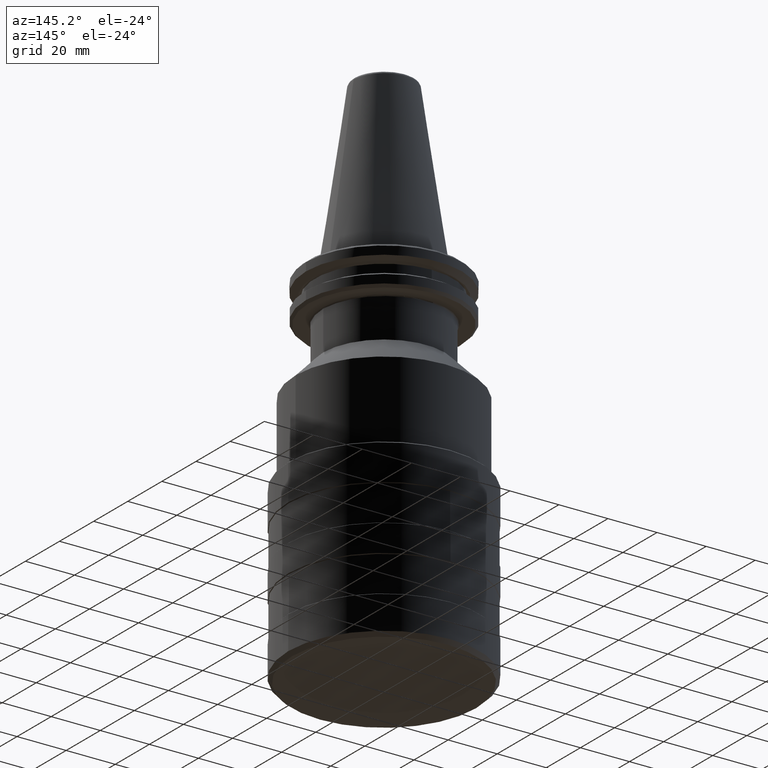
[diagram: clean part render]
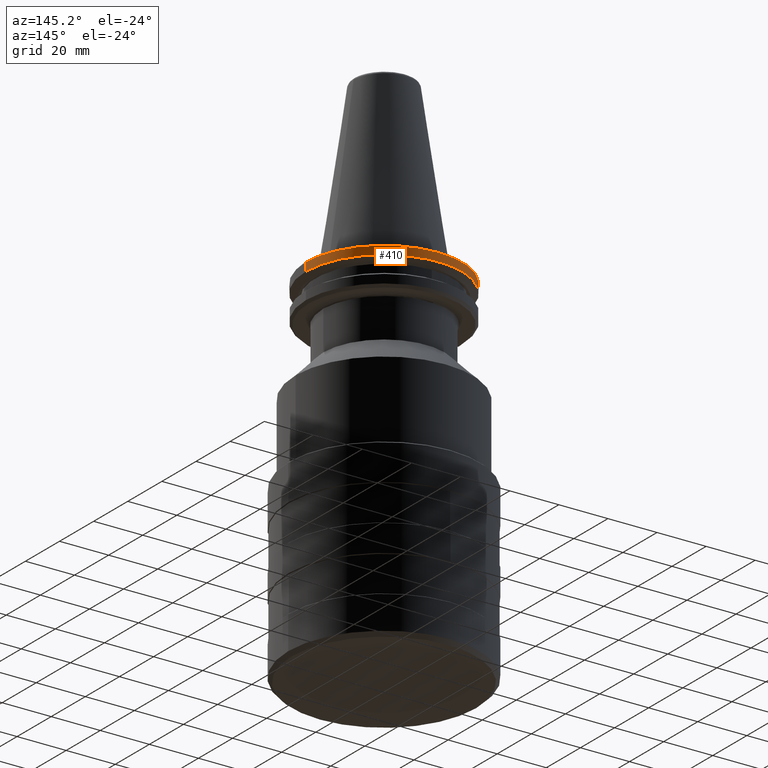
[diagram: same view with one face highlighted and labeled with its STEP entity id]
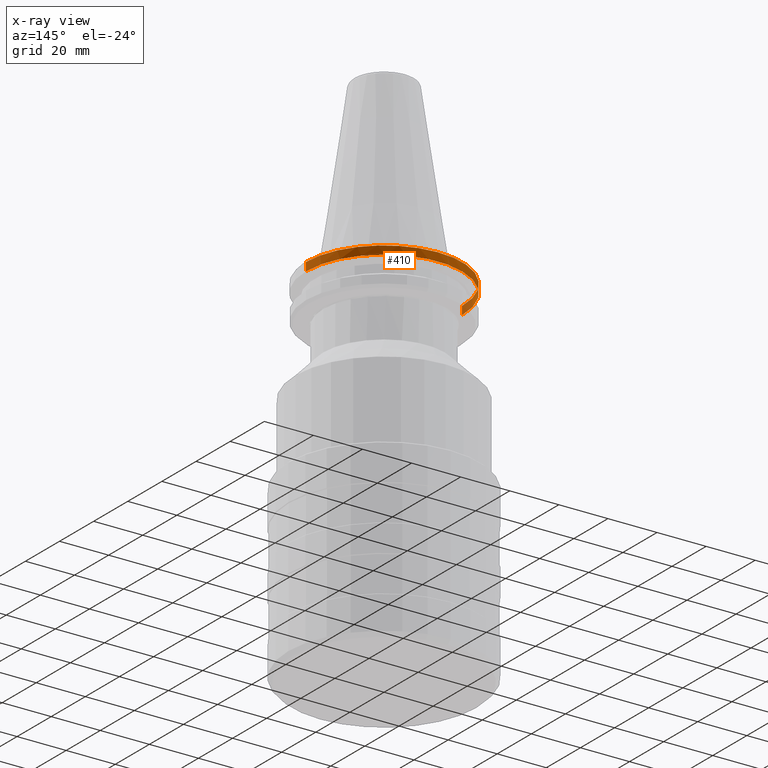
[diagram: x-ray of the same camera — body ghosted, the highlighted face saturated]
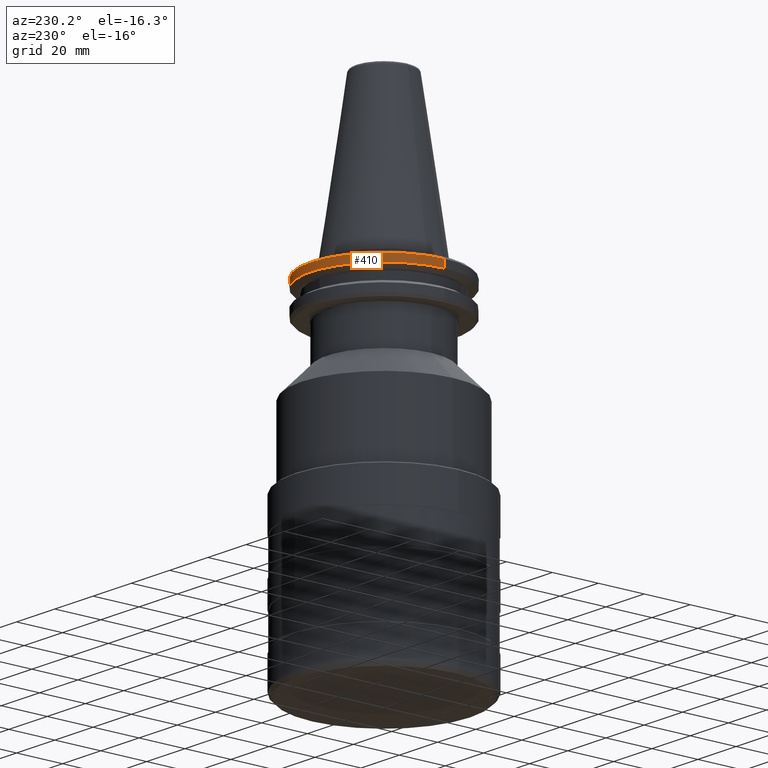
[diagram: same view with one face highlighted and labeled with its STEP entity id]
A machine part, auxiliary view. The second image highlights one B-rep face of the part: STEP entity #410.
The next image is the same camera in x-ray: the body ghosted, the highlighted face saturated — about 5% of this face is hidden behind the body in this view.
A second angle (auxiliary view) of the same face is appended — the face is thin or edge-on in the first view.
In plain terms, the highlighted cylindrical surface (partial cylindrical patch) has radius 31.75 mm, axis along (0, 0, 1).
Its self-contained STEP definition (entity closure, byte-faithful):
#10 = CARTESIAN_POINT ( 'NONE',  ( -31.75000000000017400, 3.888253587292867800E-015, -4.199999999999986900 ) ) ;
#28 = EDGE_CURVE ( 'NONE', #616, #1478, #552, .T. ) ;
#50 = VECTOR ( 'NONE', #2071, 1000.000000000000000 ) ;
#95 = ORIENTED_EDGE ( 'NONE', *, *, #1052, .T. ) ;
#104 = ORIENTED_EDGE ( 'NONE', *, *, #1176, .F. ) ;
#133 = DIRECTION ( 'NONE',  ( 1.000000000000000000, 0.0000000000000000000, 1.038102237592419800E-015 ) ) ;
#134 = DIRECTION ( 'NONE',  ( -1.032481906733392500E-015, -0.0000000000000000000, 1.000000000000000000 ) ) ;
#138 = CARTESIAN_POINT ( 'NONE',  ( -1.653171395293145000E-013, 0.0000000000000000000, -4.199999999999954000 ) ) ;
#283 = DIRECTION ( 'NONE',  ( -1.032481906733392500E-015, -0.0000000000000000000, 1.000000000000000000 ) ) ;
#319 = VERTEX_POINT ( 'NONE', #1245 ) ;
#332 = CARTESIAN_POINT ( 'NONE',  ( -1.653171395293145000E-013, 0.0000000000000000000, -4.199999999999954000 ) ) ;
#396 = VERTEX_POINT ( 'NONE', #1926 ) ;
#410 = ADVANCED_FACE ( 'NONE', ( #1764 ), #1464, .T. ) ;
#552 = CIRCLE ( 'NONE', #1491, 31.75000000000000700 ) ;
#591 = DIRECTION ( 'NONE',  ( 1.000000000000000000, 0.0000000000000000000, 0.0000000000000000000 ) ) ;
#595 = DIRECTION ( 'NONE',  ( -0.0000000000000000000, -0.0000000000000000000, -1.000000000000000000 ) ) ;
#597 = CARTESIAN_POINT ( 'NONE',  ( 0.0000000000000000000, 0.0000000000000000000, -7.578163358026492900 ) ) ;
#616 = VERTEX_POINT ( 'NONE', #1493 ) ;
#782 = CARTESIAN_POINT ( 'NONE',  ( -31.75000000000000000, 3.888253587292846500E-015, -7.578163358000000300 ) ) ;
#802 = VECTOR ( 'NONE', #1975, 1000.000000000000000 ) ;
#815 = VERTEX_POINT ( 'NONE', #1697 ) ;
#1041 = ORIENTED_EDGE ( 'NONE', *, *, #2098, .F. ) ;
#1049 = DIRECTION ( 'NONE',  ( 1.000000000000000000, 0.0000000000000000000, 0.0000000000000000000 ) ) ;
#1052 = EDGE_CURVE ( 'NONE', #319, #1478, #1410, .T. ) ;
#1127 = ORIENTED_EDGE ( 'NONE', *, *, #28, .F. ) ;
#1176 = EDGE_CURVE ( 'NONE', #319, #815, #1540, .T. ) ;
#1245 = CARTESIAN_POINT ( 'NONE',  ( -31.74999999995411300, 3.888253587287227400E-015, -7.578163358026492900 ) ) ;
#1345 = AXIS2_PLACEMENT_3D ( 'NONE', #1720, #1739, #1049 ) ;
#1352 = EDGE_LOOP ( 'NONE', ( #104, #95, #1127, #1041, #2027 ) ) ;
#1410 = LINE ( 'NONE', #782, #50 ) ;
#1464 = CYLINDRICAL_SURFACE ( 'NONE', #1345, 31.75000000000000000 ) ;
#1478 = VERTEX_POINT ( 'NONE', #10 ) ;
#1491 = AXIS2_PLACEMENT_3D ( 'NONE', #332, #283, #1607 ) ;
#1493 = CARTESIAN_POINT ( 'NONE',  ( 0.0000000000000000000, 31.74999999999995000, -4.199999999999954000 ) ) ;
#1540 = CIRCLE ( 'NONE', #1796, 31.74999999995411300 ) ;
#1569 = EDGE_CURVE ( 'NONE', #815, #396, #2005, .T. ) ;
#1607 = DIRECTION ( 'NONE',  ( 1.000000000000000000, 0.0000000000000000000, 1.038102237592419800E-015 ) ) ;
#1697 = CARTESIAN_POINT ( 'NONE',  ( 31.74999999995411300, 0.0000000000000000000, -7.578163358026492900 ) ) ;
#1720 = CARTESIAN_POINT ( 'NONE',  ( 0.0000000000000000000, 0.0000000000000000000, -7.578163358000000300 ) ) ;
#1739 = DIRECTION ( 'NONE',  ( 0.0000000000000000000, 0.0000000000000000000, 1.000000000000000000 ) ) ;
#1764 = FACE_OUTER_BOUND ( 'NONE', #1352, .T. ) ;
#1796 = AXIS2_PLACEMENT_3D ( 'NONE', #597, #595, #591 ) ;
#1926 = CARTESIAN_POINT ( 'NONE',  ( 31.74999999999984000, 0.0000000000000000000, -4.199999999999921100 ) ) ;
#1975 = DIRECTION ( 'NONE',  ( 0.0000000000000000000, 0.0000000000000000000, 1.000000000000000000 ) ) ;
#2005 = LINE ( 'NONE', #2045, #802 ) ;
#2010 = AXIS2_PLACEMENT_3D ( 'NONE', #138, #134, #133 ) ;
#2027 = ORIENTED_EDGE ( 'NONE', *, *, #1569, .F. ) ;
#2045 = CARTESIAN_POINT ( 'NONE',  ( 31.75000000000000000, 0.0000000000000000000, -7.578163358000000300 ) ) ;
#2071 = DIRECTION ( 'NONE',  ( 0.0000000000000000000, 0.0000000000000000000, 1.000000000000000000 ) ) ;
#2098 = EDGE_CURVE ( 'NONE', #396, #616, #2257, .T. ) ;
#2257 = CIRCLE ( 'NONE', #2010, 31.75000000000000700 ) ;